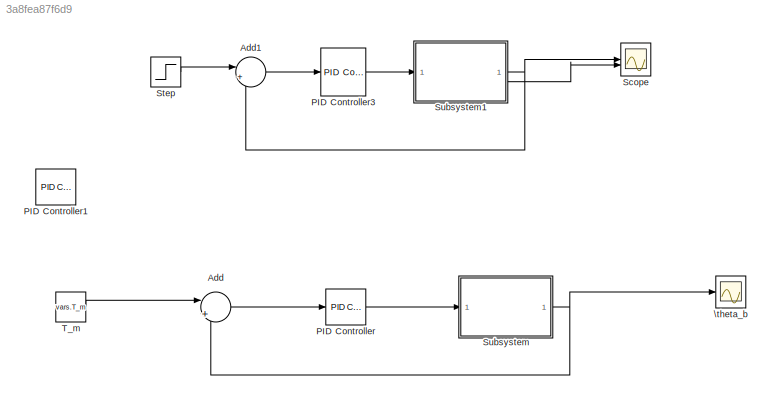
MODEL slx_3a8fea87f6d9
KIND model
CONFIG AbsTol = auto
CONFIG EnableMultiTasking = off
CONFIG FixedStep = 0.001
CONFIG MaxStep = auto
CONFIG MinStep = auto
CONFIG RelTol = 1e-3
CONFIG SampleTimeConstraint = Unconstrained
CONFIG SolverName = FixedStepAuto
CONFIG StartTime = 0.0
CONFIG StopTime = 5
BLOCK [Sum] Add
  Commented = on
  Inputs = |+-
BLOCK [Sum] Add1
  Inputs = |+-
BLOCK [Reference] PID Controller  REF=slpidlib/PID Controller
  Commented = on
  LibrarySourceBlock = simulink/Continuous/PID Controller
  SourceBlock = slpidlib/PID Controller
  SourceType = PID 1dof
BLOCK [Reference] PID Controller1  REF=slpidlib/PID Controller
  Commented = on
  LibrarySourceBlock = simulink/Continuous/PID Controller
  SourceBlock = slpidlib/PID Controller
  SourceType = PID 1dof
BLOCK [Reference] PID Controller3  REF=slpidlib/PID Controller
  LibrarySourceBlock = simulink/Continuous/PID Controller
  SourceBlock = slpidlib/PID Controller
  SourceType = PID 1dof
BLOCK [Scope] Scope
  Floating = off
  NumInputPorts = 2
  ScopeSpecificationString = Simulink.scopes.TimeScopeBlockCfg('CurrentConfiguration', extmgr.ConfigurationSet(extmgr.Configuration('Core','General UI',true),extmgr.Configuration('Core','Source UI',true),extmgr.Configuration('Sources','WiredSimulink',true,'DataLoggingVariableName','ScopeData1'),extmgr.Configuration('Visuals','Time Domain',true,'SerializedDisplays',{struct('MinYLimReal','1.20629','MaxYLimReal','1.31646','YLabe...<+1522ch>
BLOCK [Step] Step
  After = 200
  SampleTime = 0
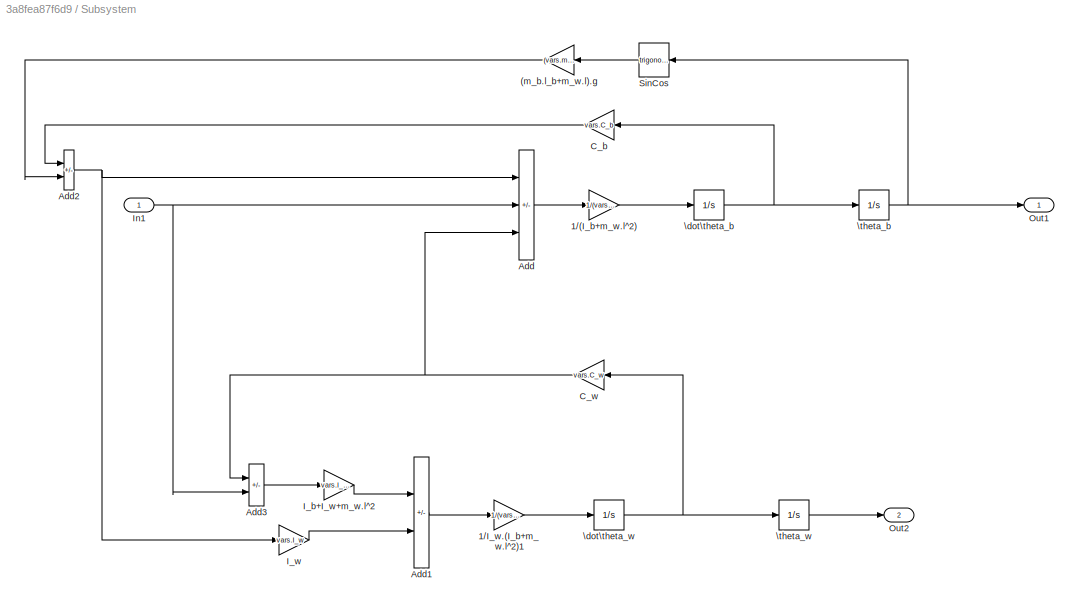
BLOCK [SubSystem] Subsystem
  Commented = on
BLOCK [Gain] Subsystem/(m_b.l_b+m_w.l).g
  Gain = (vars.m_b * vars.l_b + vars.m_w * vars.l) * vars.g
  NameLocation = top
BLOCK [Gain] Subsystem/1//(I_b+m_w.l^2)
  Gain = 1/(vars.I_b + vars.m_w*(vars.l)^2)
BLOCK [Gain] Subsystem/1//I_w.(I_b+m_w.l^2)1
  Gain = 1/(vars.I_w*(vars.I_b + vars.m_w*(vars.l)^2))
BLOCK [Sum] Subsystem/Add
  IconShape = rectangular
  Inputs = +-+
BLOCK [Sum] Subsystem/Add1
  IconShape = rectangular
  Inputs = +-
BLOCK [Sum] Subsystem/Add2
  IconShape = rectangular
  Inputs = -+
BLOCK [Sum] Subsystem/Add3
  IconShape = rectangular
  Inputs = -+
BLOCK [Gain] Subsystem/C_b
  Gain = vars.C_b
  NameLocation = top
BLOCK [Gain] Subsystem/C_w
  Gain = vars.C_w
  NameLocation = top
BLOCK [Gain] Subsystem/I_b+I_w+m_w.l^2
  Gain = vars.I_b + vars.I_w + (vars.m_w * (vars.l)^2)
BLOCK [Gain] Subsystem/I_w
  Gain = vars.I_w
BLOCK [Inport] Subsystem/In1
BLOCK [Outport] Subsystem/Out1
BLOCK [Outport] Subsystem/Out2
  Port = 2
BLOCK [Trigonometry] Subsystem/SinCos
  NameLocation = top
BLOCK [Integrator] Subsystem/\dot\theta_b
BLOCK [Integrator] Subsystem/\dot\theta_w
BLOCK [Integrator] Subsystem/\theta_b
  InitialCondition = pi/3
BLOCK [Integrator] Subsystem/\theta_w
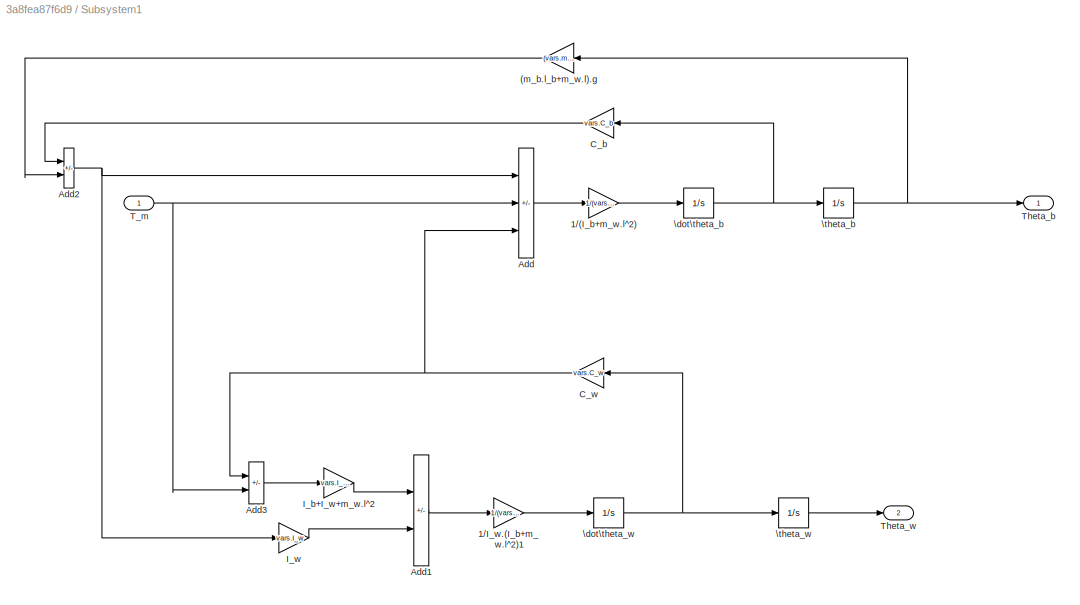
BLOCK [SubSystem] Subsystem1
BLOCK [Gain] Subsystem1/(m_b.l_b+m_w.l).g
  Gain = (vars.m_b * vars.l_b + vars.m_w * vars.l) * vars.g
  NameLocation = top
BLOCK [Gain] Subsystem1/1//(I_b+m_w.l^2)
  Gain = 1/(vars.I_b + vars.m_w*(vars.l)^2)
BLOCK [Gain] Subsystem1/1//I_w.(I_b+m_w.l^2)1
  Gain = 1/(vars.I_w*(vars.I_b + vars.m_w*(vars.l)^2))
BLOCK [Sum] Subsystem1/Add
  IconShape = rectangular
  Inputs = +-+
BLOCK [Sum] Subsystem1/Add1
  IconShape = rectangular
  Inputs = +-
BLOCK [Sum] Subsystem1/Add2
  IconShape = rectangular
  Inputs = -+
BLOCK [Sum] Subsystem1/Add3
  IconShape = rectangular
  Inputs = -+
BLOCK [Gain] Subsystem1/C_b
  Gain = vars.C_b
  NameLocation = top
BLOCK [Gain] Subsystem1/C_w
  Gain = vars.C_w
  NameLocation = top
BLOCK [Gain] Subsystem1/I_b+I_w+m_w.l^2
  Gain = vars.I_b + vars.I_w + (vars.m_w * (vars.l)^2)
BLOCK [Gain] Subsystem1/I_w
  Gain = vars.I_w
BLOCK [Inport] Subsystem1/T_m
  IconDisplay = Port number and signal name
BLOCK [Outport] Subsystem1/Theta_b
  IconDisplay = Port number and signal name
BLOCK [Outport] Subsystem1/Theta_w
  IconDisplay = Port number and signal name
  Port = 2
BLOCK [Integrator] Subsystem1/\dot\theta_b
BLOCK [Integrator] Subsystem1/\dot\theta_w
BLOCK [Integrator] Subsystem1/\theta_b
  InitialCondition = pi/3
BLOCK [Integrator] Subsystem1/\theta_w
BLOCK [Constant] T_m
  Commented = on
  Value = vars.T_m
BLOCK [Scope] \theta_b
  Commented = on
  Floating = off
  NumInputPorts = 1
  ScopeSpecificationString = Simulink.scopes.TimeScopeBlockCfg('CurrentConfiguration', extmgr.ConfigurationSet(extmgr.Configuration('Core','General UI',true),extmgr.Configuration('Core','Source UI',true),extmgr.Configuration('Sources','WiredSimulink',true,'DataLoggingVariableName','ScopeData1'),extmgr.Configuration('Visuals','Time Domain',true,'SerializedDisplays',{struct('MinYLimReal','-0.3299','MaxYLimReal','1.20021','YLabe...<+1400ch>
LINE Add1:1 -> PID Controller3:1
LINE Add:1 -> PID Controller:1
LINE PID Controller3:1 -> Subsystem1:1
LINE PID Controller:1 -> Subsystem:1
LINE Step:1 -> Add1:1
LINE Subsystem/(m_b.l_b+m_w.l).g:1 -> Subsystem/Add2:2
LINE Subsystem/1//(I_b+m_w.l^2):1 -> Subsystem/\dot\theta_b:1
LINE Subsystem/1//I_w.(I_b+m_w.l^2)1:1 -> Subsystem/\dot\theta_w:1
LINE Subsystem/Add1:1 -> Subsystem/1//I_w.(I_b+m_w.l^2)1:1
NET Subsystem/Add2:1 -> Subsystem/Add:1, Subsystem/I_w:1
LINE Subsystem/Add3:1 -> Subsystem/I_b+I_w+m_w.l^2:1
LINE Subsystem/Add:1 -> Subsystem/1//(I_b+m_w.l^2):1
LINE Subsystem/C_b:1 -> Subsystem/Add2:1
NET Subsystem/C_w:1 -> Subsystem/Add3:1, Subsystem/Add:3
LINE Subsystem/I_b+I_w+m_w.l^2:1 -> Subsystem/Add1:1
LINE Subsystem/I_w:1 -> Subsystem/Add1:2
NET Subsystem/In1:1 -> Subsystem/Add3:2, Subsystem/Add:2
LINE Subsystem/SinCos:1 -> Subsystem/(m_b.l_b+m_w.l).g:1
NET Subsystem/\dot\theta_b:1 -> Subsystem/C_b:1, Subsystem/\theta_b:1
NET Subsystem/\dot\theta_w:1 -> Subsystem/C_w:1, Subsystem/\theta_w:1
NET Subsystem/\theta_b:1 -> Subsystem/Out1:1, Subsystem/SinCos:1
LINE Subsystem/\theta_w:1 -> Subsystem/Out2:1
LINE Subsystem1/(m_b.l_b+m_w.l).g:1 -> Subsystem1/Add2:2
LINE Subsystem1/1//(I_b+m_w.l^2):1 -> Subsystem1/\dot\theta_b:1
LINE Subsystem1/1//I_w.(I_b+m_w.l^2)1:1 -> Subsystem1/\dot\theta_w:1
LINE Subsystem1/Add1:1 -> Subsystem1/1//I_w.(I_b+m_w.l^2)1:1
NET Subsystem1/Add2:1 -> Subsystem1/Add:1, Subsystem1/I_w:1
LINE Subsystem1/Add3:1 -> Subsystem1/I_b+I_w+m_w.l^2:1
LINE Subsystem1/Add:1 -> Subsystem1/1//(I_b+m_w.l^2):1
LINE Subsystem1/C_b:1 -> Subsystem1/Add2:1
NET Subsystem1/C_w:1 -> Subsystem1/Add3:1, Subsystem1/Add:3
LINE Subsystem1/I_b+I_w+m_w.l^2:1 -> Subsystem1/Add1:1
LINE Subsystem1/I_w:1 -> Subsystem1/Add1:2
NET Subsystem1/T_m:1 -> Subsystem1/Add3:2, Subsystem1/Add:2
NET Subsystem1/\dot\theta_b:1 -> Subsystem1/C_b:1, Subsystem1/\theta_b:1
NET Subsystem1/\dot\theta_w:1 -> Subsystem1/C_w:1, Subsystem1/\theta_w:1
NET Subsystem1/\theta_b:1 -> Subsystem1/(m_b.l_b+m_w.l).g:1, Subsystem1/Theta_b:1
LINE Subsystem1/\theta_w:1 -> Subsystem1/Theta_w:1
NET Subsystem1:1 -> Add1:2, Scope:1
LINE Subsystem1:2 -> Scope:2
NET Subsystem:1 -> Add:2, \theta_b:1
LINE T_m:1 -> Add:1
note: NET lines group one-source signal fan-out (src -> all destinations, sorted); 1:1 wires keep LINE
